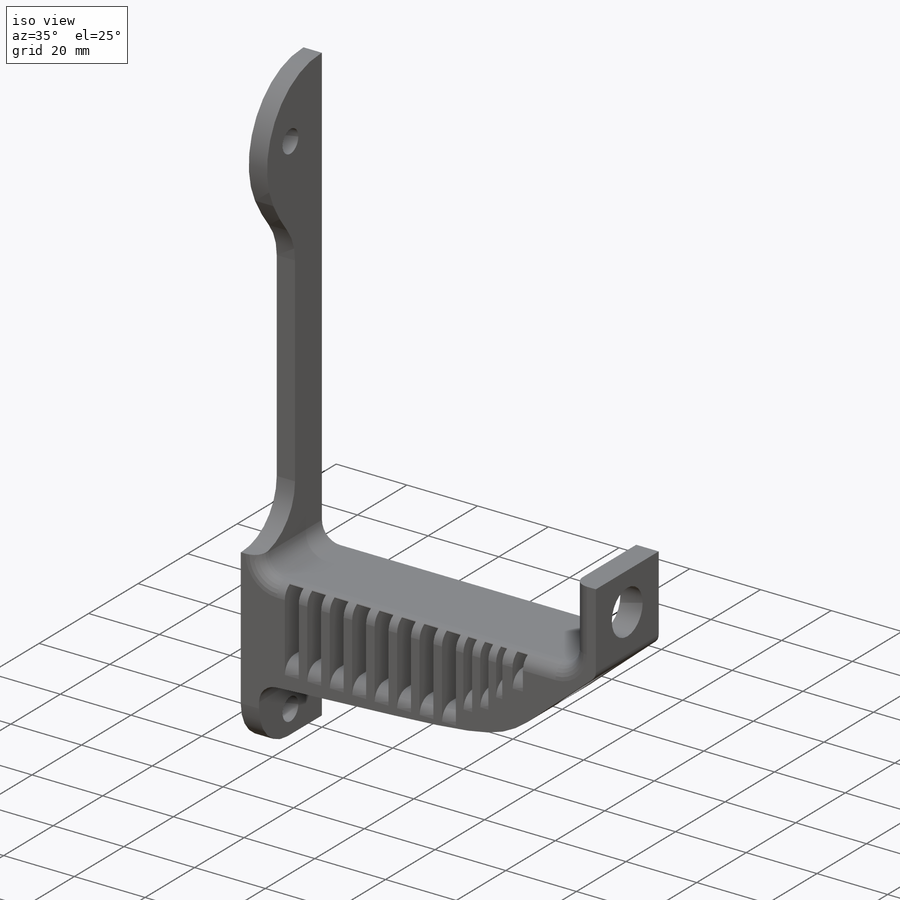
[diagram: iso view]
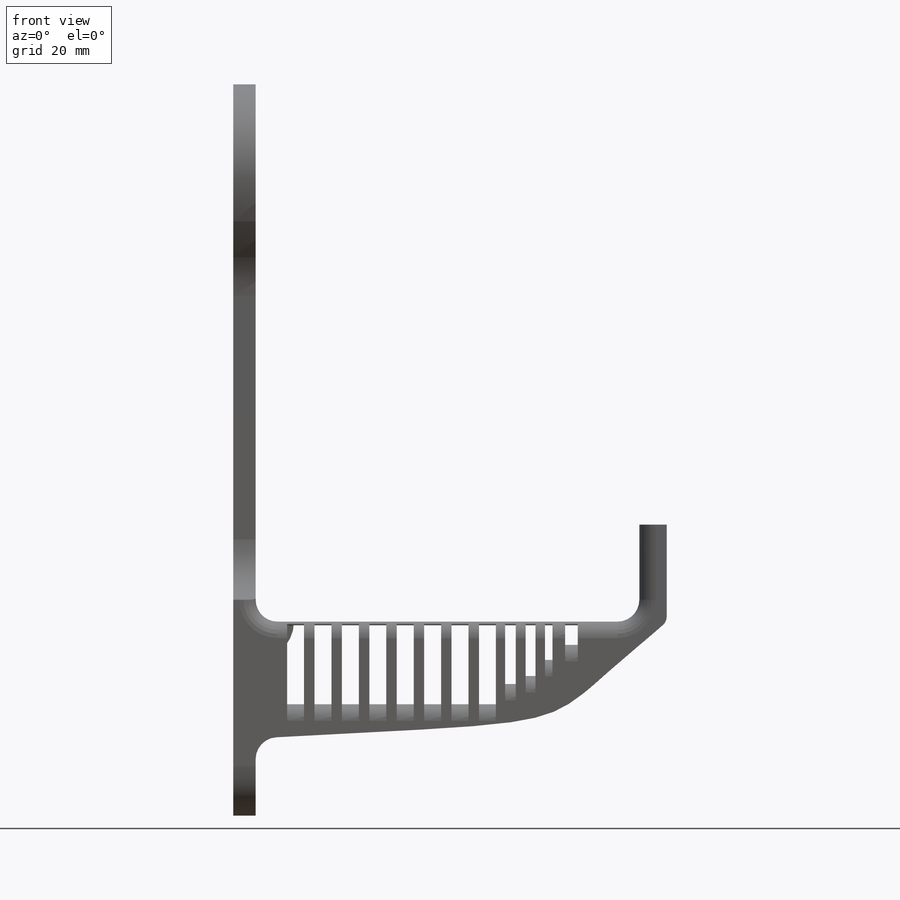
[diagram: front view]
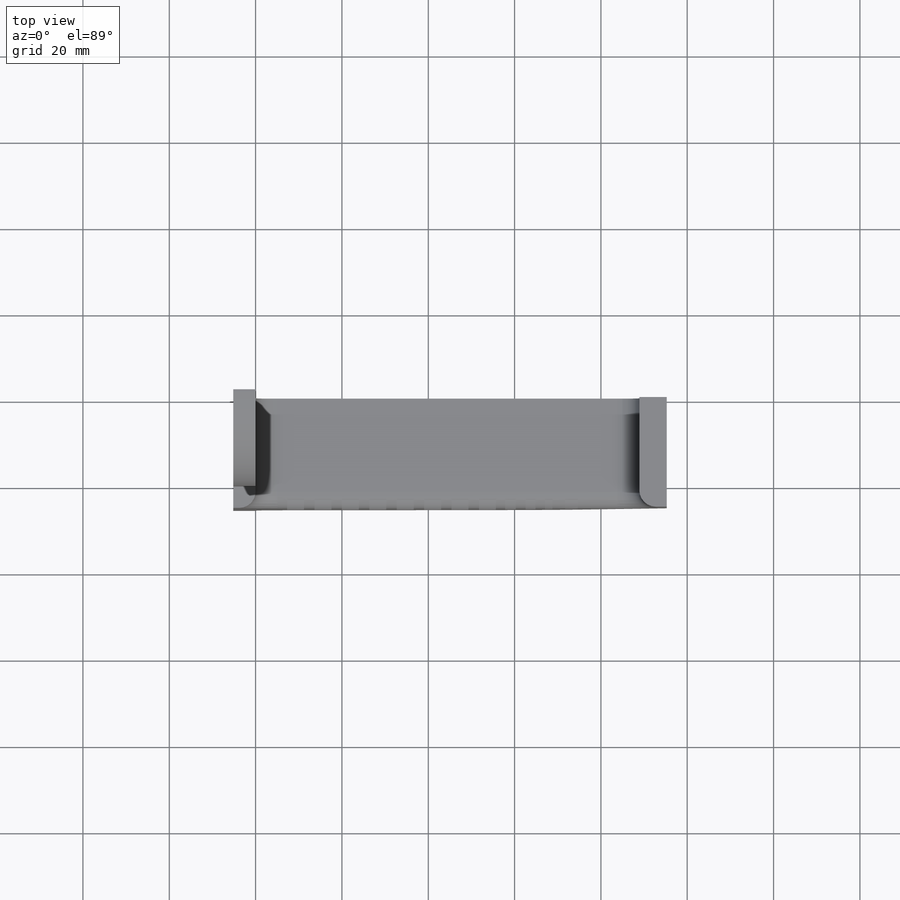
[diagram: top view]
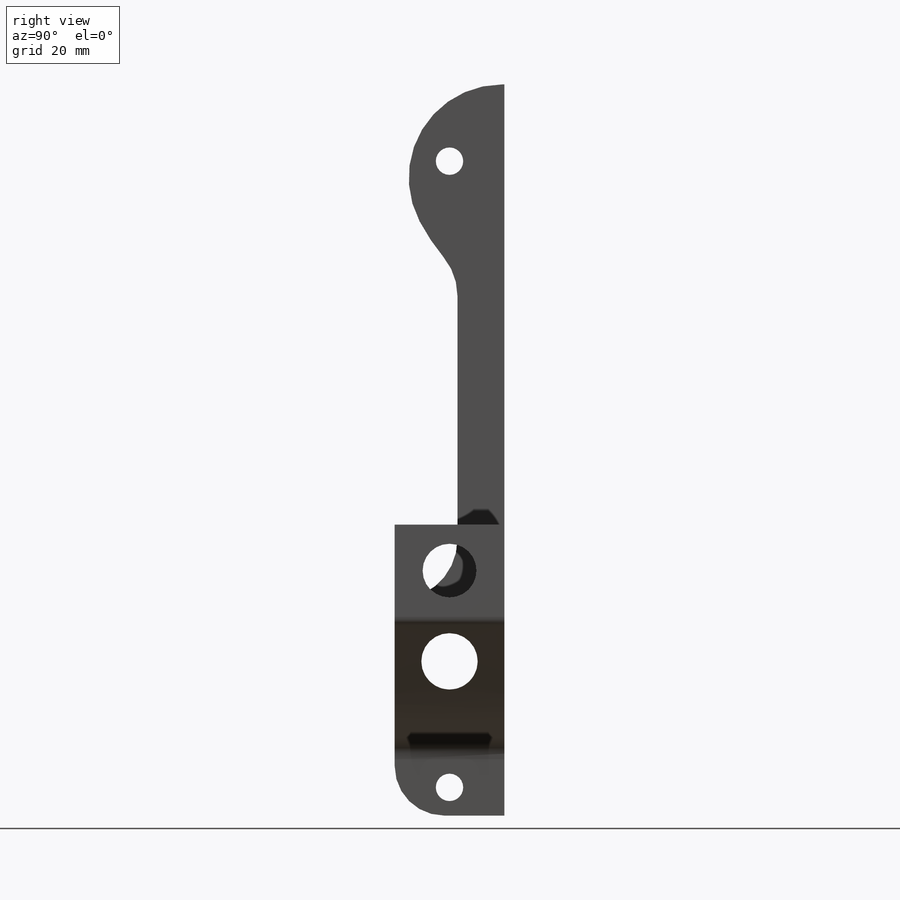
[diagram: right view]
SOLIDWORKS PART (.sldprt)
format: sldprt  version: not decoded by parser v0  size: 534,528 bytes
history: native  units: mm
features: sketch x10, fillet x6, cut_extrude x5, extrude x4, material x1 (+16 scaffold rows collapsed)
feature tree (42):
  scaffold x16  (default folders/planes/origin — collapsed)
  material  "ABS"
  sketch  "Sketch1"  dims[D3=2.54mm D4=5.08mm D5=5.08mm D1=88.9mm D2=6.35mm D6=111.76mm D7=~44.931579mm]
  extrude  "Boss-Extrude1"  Depth=25.4mm
  sketch  "Sketch2"  dims[c1.D1=~5.025079mm c1.D2=6.35mm c1.D3=~2.226444mm c2.D1=10.16mm]
  cut_extrude  "Cut-Extrude1"  [1 undecoded]
  sketch  "Sketch4"  dims[D1=8.0]
  cut_extrude  "Cut-Extrude2"  [1 undecoded]
  sketch  "Sketch6"
  cut_extrude  "Cut-Extrude3"  [1 undecoded]
  sketch  "Sketch9"  dims[D1=13.97mm]
  cut_extrude  "Cut-Extrude5"  [1 undecoded]
  fillet  "Fillet2"  Radius=49.53mm
  sketch  "Sketch10"
  extrude  "Boss-Extrude3"  Depth=7.62mm
  fillet  "Fillet3"  Radius=21.59mm
  fillet  "Fillet4"  Radius=11.43mm
  sketch  "Sketch11"  dims[D1=0.0mm]
  extrude  "Boss-Extrude4"  Depth=3.175mm
  sketch  "Sketch12"
  cut_extrude  "Cut-Extrude8"  [1 undecoded]
  fillet  "Fillet1"  Radius=3.81mm
  sketch  "Sketch13"
  sketch  "Sketch14"
  extrude  "Boss-Extrude6"  [1 undecoded]
  fillet  "Fillet6"  Radius=3.81mm
  fillet  "Fillet7"  Radius=0.254mm
decode coverage: 14 of 25 modeling features carry decoded parameters
note: ~ marks probable driven/reference dimensions
note: 6 parameter values undecoded
summary: no parameter record found for 6 features
note: suppression state not decoded; provenance and decode notes live in map.json
